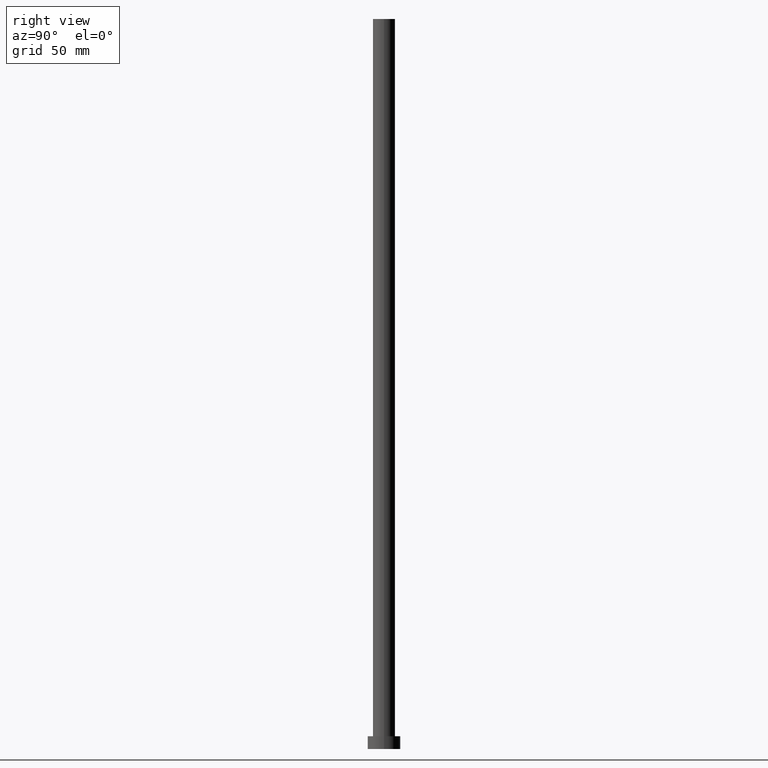
[diagram: clean part render]
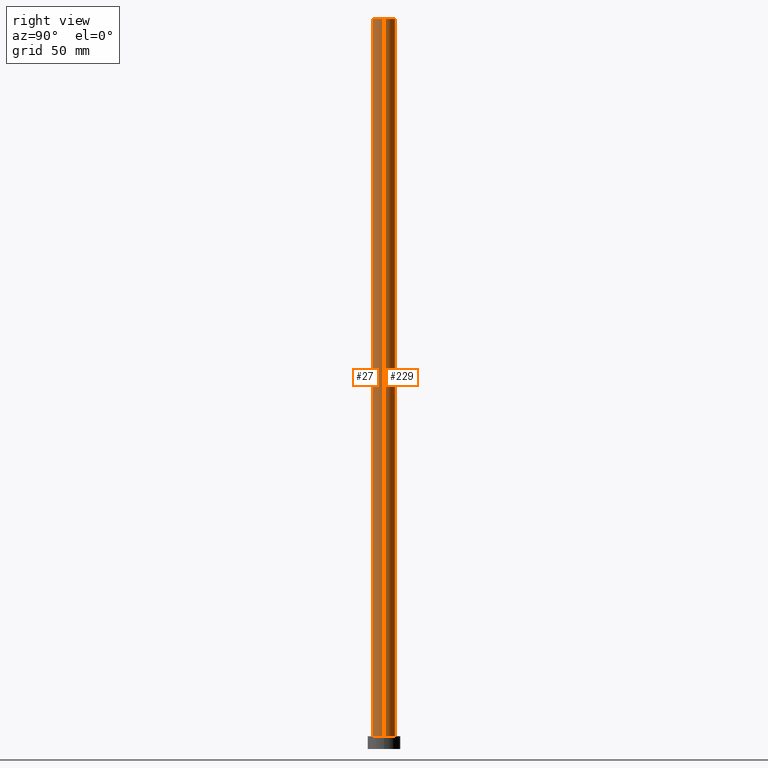
[diagram: same view with one multi-face feature highlighted, each face labeled with its STEP entity id]
A machine part, right view. The highlighted faces form ONE feature: a constant-radius fillet chain: 2 tangent blend faces with common blend radius 6.1 mm. The faces share edges in the B-rep.
Their STEP definitions:
[1] entity #27 (Cylinder):
#1 = EDGE_CURVE ( 'NONE', #119, #86, #211, .T. ) ;
#27 = ADVANCED_FACE ( 'NONE', ( #66 ), #45, .T. ) ;
#30 = CARTESIAN_POINT ( 'NONE',  ( -6.099999999999999645, 0.000000000000000000, 400.0000000000000000 ) ) ;
#31 = DIRECTION ( 'NONE',  ( 0.000000000000000000, 0.000000000000000000, 1.000000000000000000 ) ) ;
#32 = VECTOR ( 'NONE', #111, 1000.000000000000000 ) ;
#34 = DIRECTION ( 'NONE',  ( 1.000000000000000000, 0.000000000000000000, 0.000000000000000000 ) ) ;
#42 = AXIS2_PLACEMENT_3D ( 'NONE', #250, #31, #34 ) ;
#43 = ORIENTED_EDGE ( 'NONE', *, *, #185, .T. ) ;
#45 = CYLINDRICAL_SURFACE ( 'NONE', #87, 6.099999999999999645 ) ;
#46 = CIRCLE ( 'NONE', #42, 6.099999999999999645 ) ;
#47 = CARTESIAN_POINT ( 'NONE',  ( 6.099999999999999645, 7.470345474798854293E-16, 7.000000000000000000 ) ) ;
#53 = CARTESIAN_POINT ( 'NONE',  ( 6.099999999999999645, 7.470345474798854293E-16, 400.0000000000000000 ) ) ;
#62 = CARTESIAN_POINT ( 'NONE',  ( 0.000000000000000000, 0.000000000000000000, 400.0000000000000000 ) ) ;
#66 = FACE_OUTER_BOUND ( 'NONE', #101, .T. ) ;
#70 = LINE ( 'NONE', #30, #32 ) ;
#82 = DIRECTION ( 'NONE',  ( -0.000000000000000000, -0.000000000000000000, -1.000000000000000000 ) ) ;
#86 = VERTEX_POINT ( 'NONE', #47 ) ;
#87 = AXIS2_PLACEMENT_3D ( 'NONE', #62, #82, #243 ) ;
#90 = LINE ( 'NONE', #251, #253 ) ;
#101 = EDGE_LOOP ( 'NONE', ( #102, #163, #43, #223 ) ) ;
#102 = ORIENTED_EDGE ( 'NONE', *, *, #181, .F. ) ;
#104 = DIRECTION ( 'NONE',  ( 1.000000000000000000, 0.000000000000000000, 0.000000000000000000 ) ) ;
#106 = CARTESIAN_POINT ( 'NONE',  ( -6.099999999999999645, 0.000000000000000000, 7.000000000000000000 ) ) ;
#111 = DIRECTION ( 'NONE',  ( -0.000000000000000000, -0.000000000000000000, -1.000000000000000000 ) ) ;
#119 = VERTEX_POINT ( 'NONE', #106 ) ;
#144 = VERTEX_POINT ( 'NONE', #222 ) ;
#163 = ORIENTED_EDGE ( 'NONE', *, *, #210, .F. ) ;
#173 = AXIS2_PLACEMENT_3D ( 'NONE', #182, #244, #104 ) ;
#181 = EDGE_CURVE ( 'NONE', #220, #86, #90, .T. ) ;
#182 = CARTESIAN_POINT ( 'NONE',  ( 0.000000000000000000, 0.000000000000000000, 7.000000000000000000 ) ) ;
#185 = EDGE_CURVE ( 'NONE', #144, #119, #70, .T. ) ;
#210 = EDGE_CURVE ( 'NONE', #144, #220, #46, .T. ) ;
#211 = CIRCLE ( 'NONE', #173, 6.099999999999999645 ) ;
#220 = VERTEX_POINT ( 'NONE', #53 ) ;
#222 = CARTESIAN_POINT ( 'NONE',  ( -6.099999999999999645, 0.000000000000000000, 400.0000000000000000 ) ) ;
#223 = ORIENTED_EDGE ( 'NONE', *, *, #1, .T. ) ;
#232 = DIRECTION ( 'NONE',  ( -0.000000000000000000, -0.000000000000000000, -1.000000000000000000 ) ) ;
#243 = DIRECTION ( 'NONE',  ( -1.000000000000000000, 0.000000000000000000, 0.000000000000000000 ) ) ;
#244 = DIRECTION ( 'NONE',  ( 0.000000000000000000, 0.000000000000000000, 1.000000000000000000 ) ) ;
#250 = CARTESIAN_POINT ( 'NONE',  ( 0.000000000000000000, 0.000000000000000000, 400.0000000000000000 ) ) ;
#251 = CARTESIAN_POINT ( 'NONE',  ( 6.099999999999999645, 7.470345474798854293E-16, 400.0000000000000000 ) ) ;
#253 = VECTOR ( 'NONE', #232, 1000.000000000000000 ) ;
[2] entity #229 (Cylinder):
#8 = ORIENTED_EDGE ( 'NONE', *, *, #181, .T. ) ;
#15 = DIRECTION ( 'NONE',  ( -1.000000000000000000, 0.000000000000000000, 0.000000000000000000 ) ) ;
#18 = CYLINDRICAL_SURFACE ( 'NONE', #234, 6.099999999999999645 ) ;
#30 = CARTESIAN_POINT ( 'NONE',  ( -6.099999999999999645, 0.000000000000000000, 400.0000000000000000 ) ) ;
#32 = VECTOR ( 'NONE', #111, 1000.000000000000000 ) ;
#41 = EDGE_LOOP ( 'NONE', ( #57, #8, #67, #164 ) ) ;
#47 = CARTESIAN_POINT ( 'NONE',  ( 6.099999999999999645, 7.470345474798854293E-16, 7.000000000000000000 ) ) ;
#52 = FACE_OUTER_BOUND ( 'NONE', #41, .T. ) ;
#53 = CARTESIAN_POINT ( 'NONE',  ( 6.099999999999999645, 7.470345474798854293E-16, 400.0000000000000000 ) ) ;
#57 = ORIENTED_EDGE ( 'NONE', *, *, #214, .F. ) ;
#67 = ORIENTED_EDGE ( 'NONE', *, *, #238, .T. ) ;
#68 = DIRECTION ( 'NONE',  ( 0.000000000000000000, 0.000000000000000000, 1.000000000000000000 ) ) ;
#70 = LINE ( 'NONE', #30, #32 ) ;
#72 = CARTESIAN_POINT ( 'NONE',  ( 0.000000000000000000, 0.000000000000000000, 400.0000000000000000 ) ) ;
#73 = DIRECTION ( 'NONE',  ( 1.000000000000000000, 0.000000000000000000, 0.000000000000000000 ) ) ;
#83 = CIRCLE ( 'NONE', #120, 6.099999999999999645 ) ;
#86 = VERTEX_POINT ( 'NONE', #47 ) ;
#90 = LINE ( 'NONE', #251, #253 ) ;
#106 = CARTESIAN_POINT ( 'NONE',  ( -6.099999999999999645, 0.000000000000000000, 7.000000000000000000 ) ) ;
#111 = DIRECTION ( 'NONE',  ( -0.000000000000000000, -0.000000000000000000, -1.000000000000000000 ) ) ;
#119 = VERTEX_POINT ( 'NONE', #106 ) ;
#120 = AXIS2_PLACEMENT_3D ( 'NONE', #209, #68, #149 ) ;
#130 = DIRECTION ( 'NONE',  ( -0.000000000000000000, -0.000000000000000000, -1.000000000000000000 ) ) ;
#144 = VERTEX_POINT ( 'NONE', #222 ) ;
#149 = DIRECTION ( 'NONE',  ( 1.000000000000000000, 0.000000000000000000, 0.000000000000000000 ) ) ;
#150 = DIRECTION ( 'NONE',  ( 0.000000000000000000, 0.000000000000000000, 1.000000000000000000 ) ) ;
#164 = ORIENTED_EDGE ( 'NONE', *, *, #185, .F. ) ;
#168 = CIRCLE ( 'NONE', #231, 6.099999999999999645 ) ;
#181 = EDGE_CURVE ( 'NONE', #220, #86, #90, .T. ) ;
#185 = EDGE_CURVE ( 'NONE', #144, #119, #70, .T. ) ;
#193 = CARTESIAN_POINT ( 'NONE',  ( 0.000000000000000000, 0.000000000000000000, 400.0000000000000000 ) ) ;
#209 = CARTESIAN_POINT ( 'NONE',  ( 0.000000000000000000, 0.000000000000000000, 7.000000000000000000 ) ) ;
#214 = EDGE_CURVE ( 'NONE', #220, #144, #168, .T. ) ;
#220 = VERTEX_POINT ( 'NONE', #53 ) ;
#222 = CARTESIAN_POINT ( 'NONE',  ( -6.099999999999999645, 0.000000000000000000, 400.0000000000000000 ) ) ;
#229 = ADVANCED_FACE ( 'NONE', ( #52 ), #18, .T. ) ;
#231 = AXIS2_PLACEMENT_3D ( 'NONE', #72, #150, #73 ) ;
#232 = DIRECTION ( 'NONE',  ( -0.000000000000000000, -0.000000000000000000, -1.000000000000000000 ) ) ;
#234 = AXIS2_PLACEMENT_3D ( 'NONE', #193, #130, #15 ) ;
#238 = EDGE_CURVE ( 'NONE', #86, #119, #83, .T. ) ;
#251 = CARTESIAN_POINT ( 'NONE',  ( 6.099999999999999645, 7.470345474798854293E-16, 400.0000000000000000 ) ) ;
#253 = VECTOR ( 'NONE', #232, 1000.000000000000000 ) ;